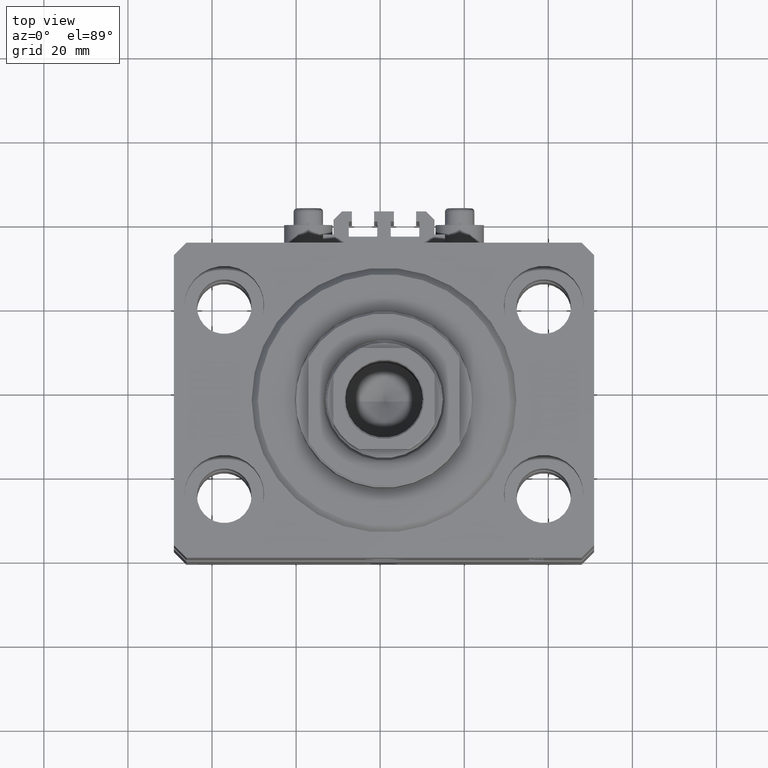
[diagram: clean part render]
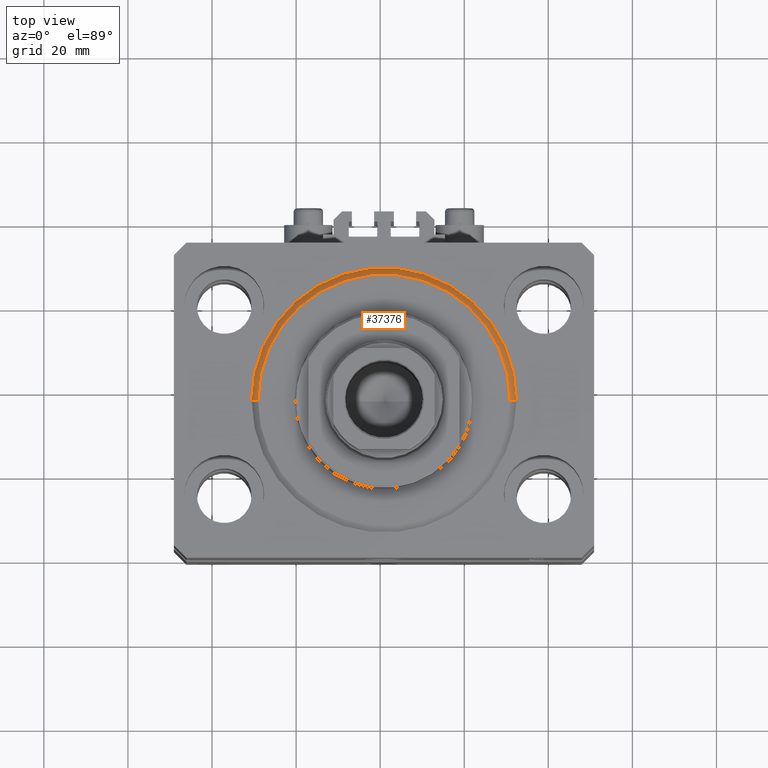
[diagram: same view with one face highlighted and labeled with its STEP entity id]
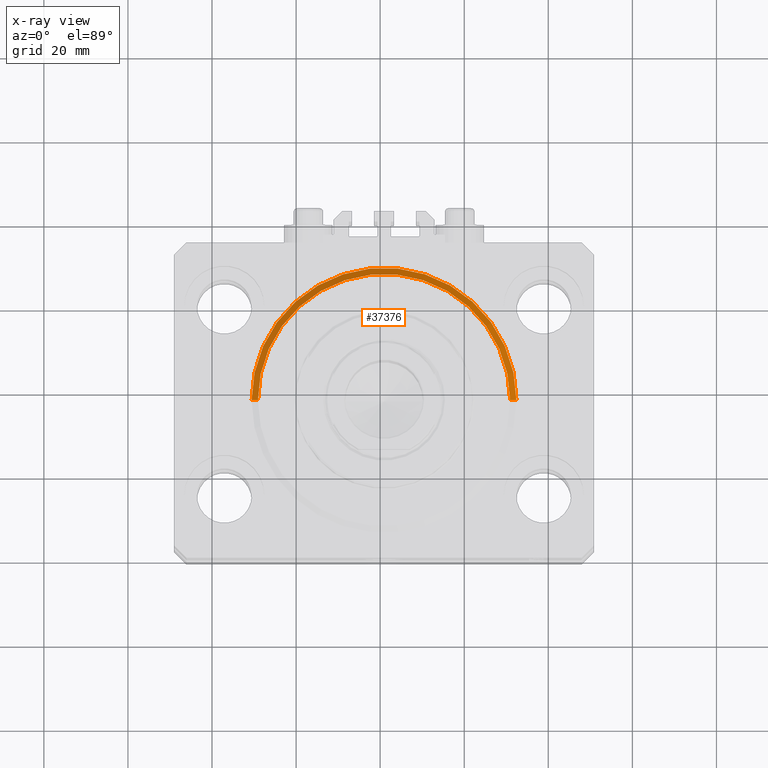
[diagram: x-ray of the same camera — body ghosted, the highlighted face saturated]
A machine part, top view. The second image highlights one B-rep face of the part: STEP entity #37376.
The next image is the same camera in x-ray: the body ghosted, the highlighted face saturated — about 0% of this face is hidden behind the body in this view.
In plain terms, the highlighted conical surface has half-angle 45 deg.
Its self-contained STEP definition (entity closure, byte-faithful):
#850 = AXIS2_PLACEMENT_3D ( 'NONE', #46797, #28010, #9680 ) ;
#1449 = ORIENTED_EDGE ( 'NONE', *, *, #5145, .F. ) ;
#5145 = EDGE_CURVE ( 'NONE', #36057, #6089, #43387, .T. ) ;
#6089 = VERTEX_POINT ( 'NONE', #23501 ) ;
#6297 = EDGE_CURVE ( 'NONE', #23406, #36057, #32857, .T. ) ;
#6622 = DIRECTION ( 'NONE',  ( 1.000000000000000000, 0.000000000000000000, 0.000000000000000000 ) ) ;
#7010 = DIRECTION ( 'NONE',  ( -0.7071067811865491270, 8.659560562354952580E-17, 0.7071067811865459074 ) ) ;
#9680 = DIRECTION ( 'NONE',  ( 1.000000000000000000, 0.000000000000000000, 0.000000000000000000 ) ) ;
#9825 = CONICAL_SURFACE ( 'NONE', #36797, 31.50000000000000000, 0.7853981633974506105 ) ;
#11160 = DIRECTION ( 'NONE',  ( 0.7071067811865491270, 0.000000000000000000, 0.7071067811865459074 ) ) ;
#11213 = CARTESIAN_POINT ( 'NONE',  ( 0.000000000000000000, 0.000000000000000000, 1.500000000000001332 ) ) ;
#14998 = DIRECTION ( 'NONE',  ( 1.000000000000000000, 0.000000000000000000, 0.000000000000000000 ) ) ;
#16846 = ORIENTED_EDGE ( 'NONE', *, *, #24606, .T. ) ;
#17405 = LINE ( 'NONE', #21987, #33876 ) ;
#18125 = DIRECTION ( 'NONE',  ( -0.000000000000000000, -0.000000000000000000, 1.000000000000000000 ) ) ;
#21547 = CARTESIAN_POINT ( 'NONE',  ( 31.50000000000000000, 0.000000000000000000, 1.500000000000001332 ) ) ;
#21871 = AXIS2_PLACEMENT_3D ( 'NONE', #11213, #47602, #6622 ) ;
#21987 = CARTESIAN_POINT ( 'NONE',  ( -31.50000000000000000, 3.857637417314162689E-15, 1.500000000000001332 ) ) ;
#23001 = ORIENTED_EDGE ( 'NONE', *, *, #6297, .F. ) ;
#23153 = VERTEX_POINT ( 'NONE', #28601 ) ;
#23406 = VERTEX_POINT ( 'NONE', #38447 ) ;
#23501 = CARTESIAN_POINT ( 'NONE',  ( -31.50000000000000000, 0.000000000000000000, 1.500000000000001332 ) ) ;
#24606 = EDGE_CURVE ( 'NONE', #23153, #6089, #17405, .T. ) ;
#26335 = ORIENTED_EDGE ( 'NONE', *, *, #31216, .F. ) ;
#28010 = DIRECTION ( 'NONE',  ( -0.000000000000000000, -0.000000000000000000, -1.000000000000000000 ) ) ;
#28601 = CARTESIAN_POINT ( 'NONE',  ( -29.99999999999999289, 3.765788907378110539E-15, 0.000000000000000000 ) ) ;
#28895 = VECTOR ( 'NONE', #11160, 1000.000000000000000 ) ;
#31216 = EDGE_CURVE ( 'NONE', #23153, #23406, #33191, .T. ) ;
#32857 = LINE ( 'NONE', #21547, #28895 ) ;
#33191 = CIRCLE ( 'NONE', #850, 29.99999999999999289 ) ;
#33876 = VECTOR ( 'NONE', #7010, 1000.000000000000000 ) ;
#36057 = VERTEX_POINT ( 'NONE', #43281 ) ;
#36797 = AXIS2_PLACEMENT_3D ( 'NONE', #40540, #18125, #14998 ) ;
#36936 = FACE_OUTER_BOUND ( 'NONE', #46469, .T. ) ;
#37376 = ADVANCED_FACE ( 'NONE', ( #36936 ), #9825, .T. ) ;
#38447 = CARTESIAN_POINT ( 'NONE',  ( 29.99999999999999289, 0.000000000000000000, 0.000000000000000000 ) ) ;
#40540 = CARTESIAN_POINT ( 'NONE',  ( 0.000000000000000000, 0.000000000000000000, 1.500000000000001332 ) ) ;
#43281 = CARTESIAN_POINT ( 'NONE',  ( 31.50000000000000000, 3.857637417314162689E-15, 1.500000000000001332 ) ) ;
#43387 = CIRCLE ( 'NONE', #21871, 31.50000000000000000 ) ;
#46469 = EDGE_LOOP ( 'NONE', ( #26335, #16846, #1449, #23001 ) ) ;
#46797 = CARTESIAN_POINT ( 'NONE',  ( 0.000000000000000000, 0.000000000000000000, 0.000000000000000000 ) ) ;
#47602 = DIRECTION ( 'NONE',  ( -0.000000000000000000, -0.000000000000000000, 1.000000000000000000 ) ) ;